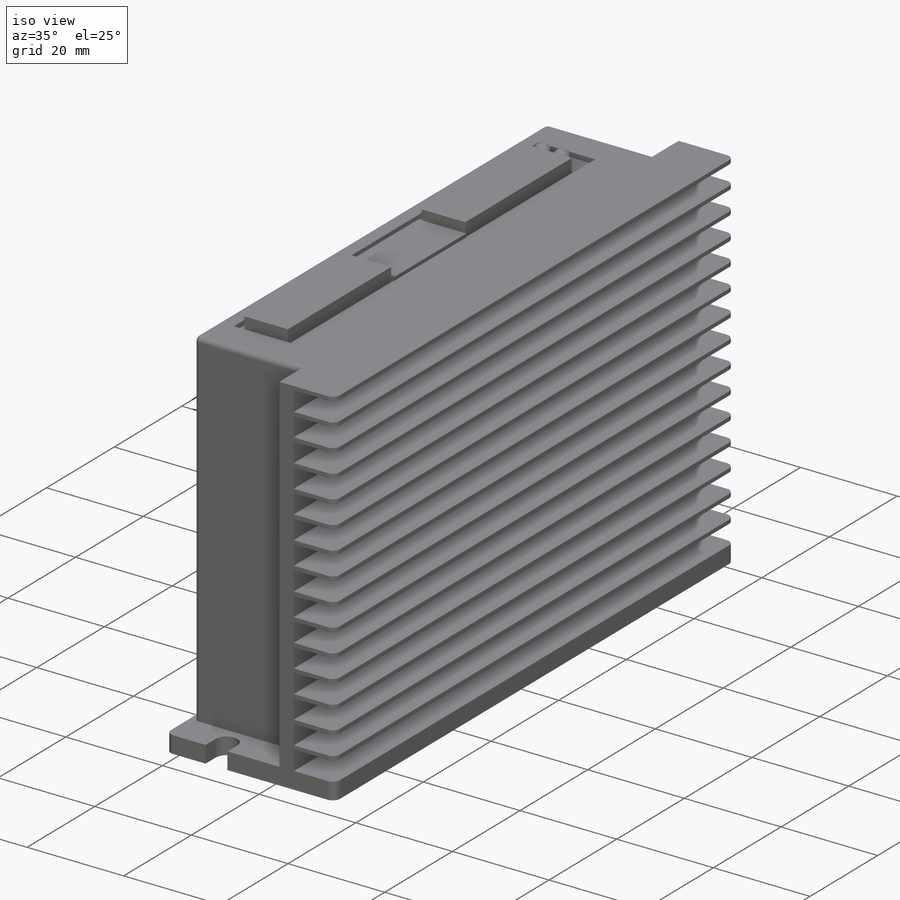
[diagram: iso view]
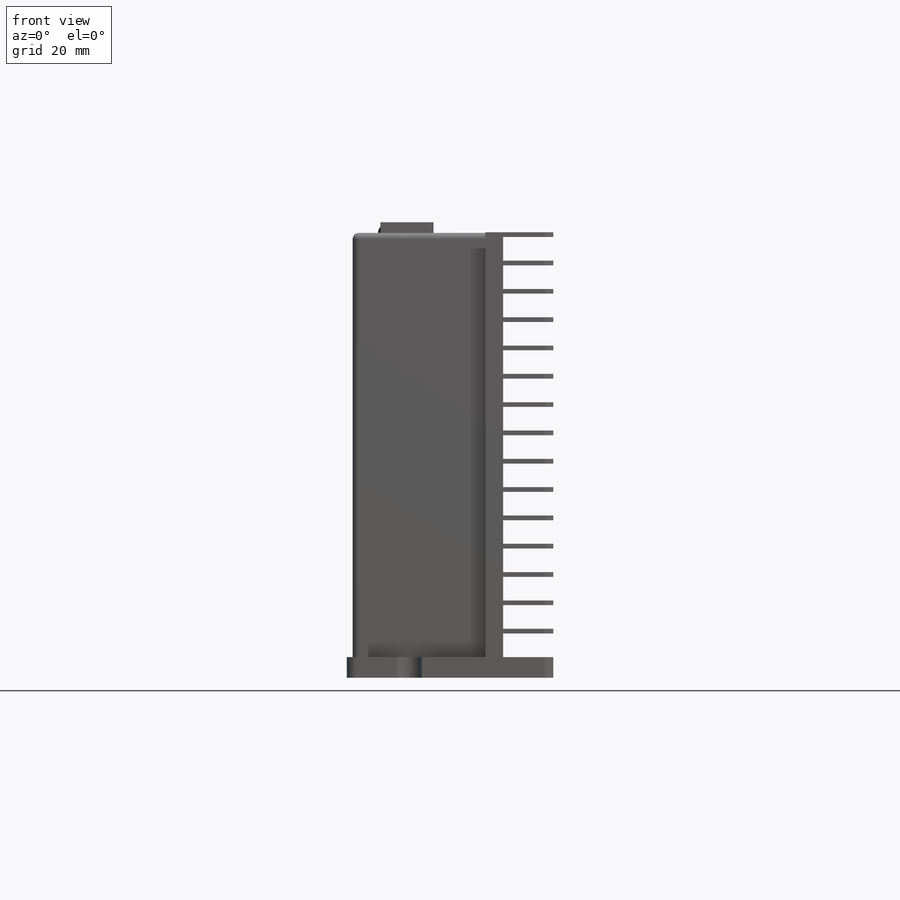
[diagram: front view]
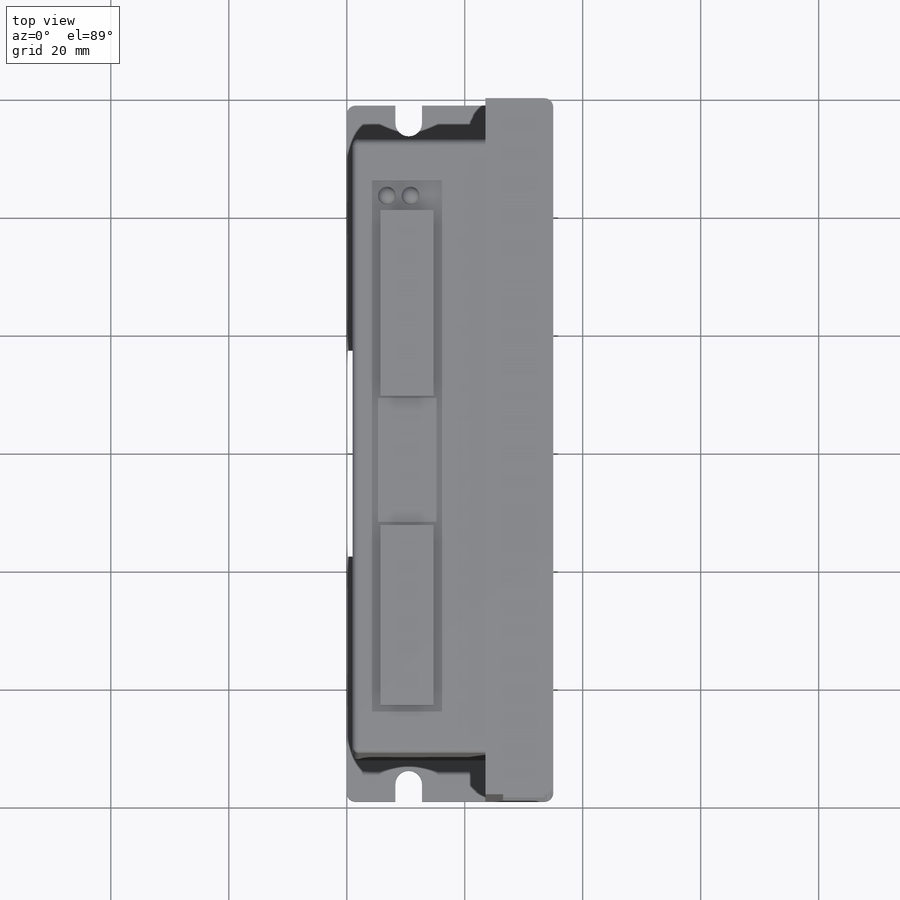
[diagram: top view]
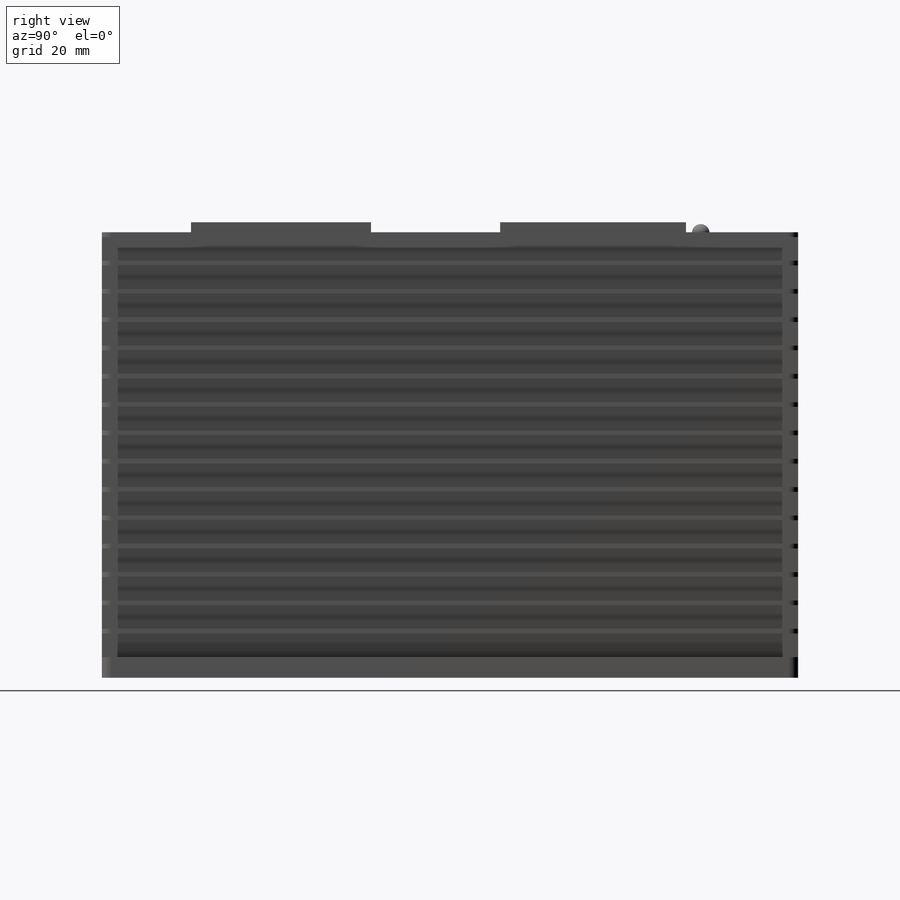
[diagram: right view]
SOLIDWORKS PART (.sldprt)
format: sldprt  version: not decoded by parser v0  size: 567,296 bytes
history: native  units: mm
features: sketch x11, extrude x5, cut_extrude x4, fillet x2, dome x2, material x1, pattern_linear x1, hole x1 (+13 scaffold rows collapsed)
feature tree (40):
  scaffold x13  (default folders/planes/origin — collapsed)
  material  "6061-T6 (SS)"
  sketch  "Sketch1"  dims[D1=35.0mm D2=75.5mm D3=3.5mm D4=11.5mm]
  extrude  "Boss-Extrude1"  Depth=118mm
  fillet  "Fillet1"  Radius=1.5mm
  sketch  "Sketch2"  dims[D1=8.5mm D2=4.0mm D3=3.5mm]
  cut_extrude  "Cut-Extrude1"  [1 undecoded]
  pattern_linear  "LPattern1"  Count1=15 Count2=1 Spacing1=4.8mm Spacing2=10mm
  sketch  "Sketch3"  dims[D1=104.0mm D2=71.9mm]
  extrude  "Boss-Extrude2"  Depth=1mm
  sketch  "Sketch4"  dims[D1=35.0mm]
  cut_extrude  "Cut-Extrude2"  [1 undecoded]
  sketch  "Sketch5"  dims[D1=10.5mm D2=112.0mm D3=4.5mm]
  cut_extrude  "Cut-Extrude3"  [1 undecoded]
  hole  "M3 Clearance Hole1"  Diameter=3.2mm Depth=26.5mm
  sketch  "Sketch7"  dims[c1.D1=112.0mm c1.D2=27.5mm c1.D3=49.5mm c2.D2=26.0mm c2.D3=48.0mm c3.D2=19.2mm]
  sketch  "Sketch6"  dims[hole-wizard template sketch: 60 standard entries collapsed; hole parameters kept: c18.Thru Hole Depth=26.5mm]
  sketch  "Sketch8"  dims[D1=90.0mm D2=11.8mm D3=3.3mm]
  cut_extrude  "Cut-Extrude4"  Depth=1mm
  sketch  "Sketch9"  dims[D1=9.0mm D2=30.5mm D3=31.5mm D4=1.1mm D5=53.5mm]
  extrude  "Boss-Extrude4"  Depth=1.8mm
  sketch  "Sketch10"  dims[D1=9.9mm D2=21.0mm D3=0.5mm D4=1.0mm]
  extrude  "Boss-Extrude5"  [1 undecoded]
  sketch  "Sketch11"  dims[D1=3.0mm D2=4.0mm D3=2.5mm D4=2.5mm]
  extrude  "Boss-Extrude6"  Depth=1mm
  dome  "Dome1"
  dome  "Dome2"
  fillet  "Fillet2"  Radius=1mm
decode coverage: 20 of 26 modeling features carry decoded parameters
note: ~ marks probable driven/reference dimensions
note: 4 parameter values undecoded
summary: no parameter record found for 4 features
note: suppression state not decoded; provenance and decode notes live in map.json
